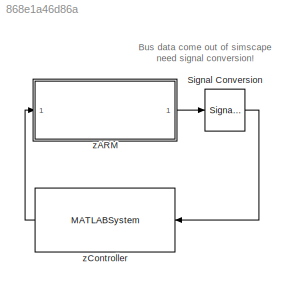
MODEL slx_868e1a46d86a
KIND model
CONFIG AbsTol = 1e-3
CONFIG EnableMultiTasking = off
CONFIG FixedStep = auto
CONFIG InitFcn = load('bus.mat')
CONFIG MaxStep = auto
CONFIG MinStep = auto
CONFIG RelTol = 1e-3
CONFIG SampleTimeConstraint = Unconstrained
CONFIG SolverName = VariableStepAuto
CONFIG StartTime = 0.0
CONFIG StopTime = 10.0
BLOCK [SignalConversion] Signal Conversion
  ConversionOutput = Nonvirtual bus
  OutDataTypeStr = Bus: state
  OverrideOpt = off
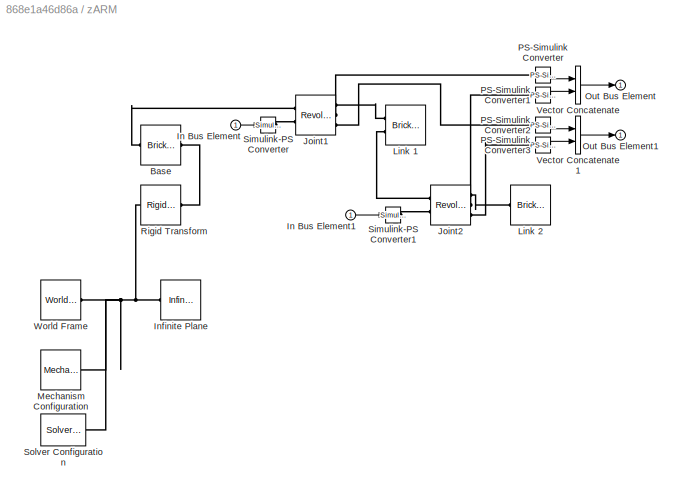
BLOCK [SubSystem] zARM
  Ports = [1, 1]
  RequestExecContextInheritance = off
BLOCK [Reference] zARM/Base  REF=sm_lib/Body Elements/Brick Solid
  Ports = [0, 0, 0, 0, 0, 1, 1]
  SourceBlock = sm_lib/Body Elements/Brick Solid
  SourceProductBaseCode = MS
  SourceType = Brick Solid
BLOCK [Inport] zARM/In Bus Element
BLOCK [Inport] zARM/In Bus Element1
BLOCK [Reference] zARM/Infinite Plane  REF=sm_lib/Curves and Surfaces/Infinite Plane
  Ports = [0, 0, 0, 0, 0, 1, 1]
  SourceBlock = sm_lib/Curves and Surfaces/Infinite Plane
  SourceProductBaseCode = MS
  SourceType = Infinite Plane
BLOCK [Reference] zARM/Joint1  REF=sm_lib/Joints/Revolute Joint
  Ports = [0, 0, 0, 0, 0, 2, 3]
  SourceBlock = sm_lib/Joints/Revolute Joint
  SourceProductBaseCode = MS
  SourceType = Revolute Joint
BLOCK [Reference] zARM/Joint2  REF=sm_lib/Joints/Revolute Joint
  Ports = [0, 0, 0, 0, 0, 2, 3]
  SourceBlock = sm_lib/Joints/Revolute Joint
  SourceProductBaseCode = MS
  SourceType = Revolute Joint
BLOCK [Reference] zARM/Link 1  REF=sm_lib/Body Elements/Brick Solid
  Ports = [0, 0, 0, 0, 0, 2, 1]
  SourceBlock = sm_lib/Body Elements/Brick Solid
  SourceProductBaseCode = MS
  SourceType = Brick Solid
BLOCK [Reference] zARM/Link 2  REF=sm_lib/Body Elements/Brick Solid
  Ports = [0, 0, 0, 0, 0, 1, 1]
  SourceBlock = sm_lib/Body Elements/Brick Solid
  SourceProductBaseCode = MS
  SourceType = Brick Solid
BLOCK [Reference] zARM/Mechanism Configuration  REF=sm_lib/Utilities/Mechanism
Configuration
  Ports = [0, 0, 0, 0, 0, 0, 1]
  SourceBlock = sm_lib/Utilities/Mechanism\nConfiguration
  SourceProductBaseCode = MS
  SourceType = Mechanism\nConfiguration
BLOCK [Outport] zARM/Out Bus Element
BLOCK [Outport] zARM/Out Bus Element1
BLOCK [Reference] zARM/PS-Simulink Converter  REF=nesl_utility/PS-Simulink
Converter
  Ports = [0, 1, 0, 0, 0, 1]
  SourceBlock = nesl_utility/PS-Simulink\nConverter
  SourceProductBaseCode = SS
  SourceType = PS-Simulink\nConverter
BLOCK [Reference] zARM/PS-Simulink Converter1  REF=nesl_utility/PS-Simulink
Converter
  Ports = [0, 1, 0, 0, 0, 1]
  SourceBlock = nesl_utility/PS-Simulink\nConverter
  SourceProductBaseCode = SS
  SourceType = PS-Simulink\nConverter
BLOCK [Reference] zARM/PS-Simulink Converter2  REF=nesl_utility/PS-Simulink
Converter
  Ports = [0, 1, 0, 0, 0, 1]
  SourceBlock = nesl_utility/PS-Simulink\nConverter
  SourceProductBaseCode = SS
  SourceType = PS-Simulink\nConverter
BLOCK [Reference] zARM/PS-Simulink Converter3  REF=nesl_utility/PS-Simulink
Converter
  Ports = [0, 1, 0, 0, 0, 1]
  SourceBlock = nesl_utility/PS-Simulink\nConverter
  SourceProductBaseCode = SS
  SourceType = PS-Simulink\nConverter
BLOCK [Reference] zARM/Rigid Transform  REF=sm_lib/Frames and
Transforms/Rigid
Transform
  Ports = [0, 0, 0, 0, 0, 1, 1]
  SourceBlock = sm_lib/Frames and\nTransforms/Rigid\nTransform
  SourceProductBaseCode = MS
  SourceType = Rigid\nTransform
BLOCK [Reference] zARM/Simulink-PS Converter  REF=nesl_utility/Simulink-PS
Converter
  Ports = [1, 0, 0, 0, 0, 0, 1]
  SourceBlock = nesl_utility/Simulink-PS\nConverter
  SourceProductBaseCode = SS
  SourceType = Simulink-PS\nConverter
BLOCK [Reference] zARM/Simulink-PS Converter1  REF=nesl_utility/Simulink-PS
Converter
  Ports = [1, 0, 0, 0, 0, 0, 1]
  SourceBlock = nesl_utility/Simulink-PS\nConverter
  SourceProductBaseCode = SS
  SourceType = Simulink-PS\nConverter
BLOCK [Reference] zARM/Solver Configuration  REF=nesl_utility/Solver
Configuration
  Ports = [0, 0, 0, 0, 0, 0, 1]
  SourceBlock = nesl_utility/Solver\nConfiguration
  SourceProductName = Utilities
  SourceType = Solver\nConfiguration
BLOCK [Concatenate] zARM/Vector Concatenate
  Ports = [2, 1]
BLOCK [Concatenate] zARM/Vector Concatenate1
  Ports = [2, 1]
BLOCK [Reference] zARM/World Frame  REF=sm_lib/Frames and
Transforms/World Frame
  Ports = [0, 0, 0, 0, 0, 0, 1]
  SourceBlock = sm_lib/Frames and\nTransforms/World Frame
  SourceProductBaseCode = MS
  SourceType = World Frame
BLOCK [MATLABSystem] zController
  MaskDisplay = disp('zController');\nport_label('input',1,'state');\nport_label('output',1,'control');
  MaskType = zController
  NameLocation = top
  Ports = [1, 1]
  SimulateUsing = Code generation
  System = zController
ANNOTATION (root): Bus data come out of simscape need signal conversion!
LINE Signal Conversion:1 -> zController:1
LINE zARM/In Bus Element1:1 -> zARM/Simulink-PS Converter1:1
LINE zARM/In Bus Element:1 -> zARM/Simulink-PS Converter:1
LINE zARM/PS-Simulink Converter1:1 -> zARM/Vector Concatenate:2
LINE zARM/PS-Simulink Converter2:1 -> zARM/Vector Concatenate1:1
LINE zARM/PS-Simulink Converter3:1 -> zARM/Vector Concatenate1:2
LINE zARM/PS-Simulink Converter:1 -> zARM/Vector Concatenate:1
LINE zARM/Vector Concatenate1:1 -> zARM/Out Bus Element1:1
LINE zARM/Vector Concatenate:1 -> zARM/Out Bus Element:1
LINE zARM:1 -> Signal Conversion:1
LINE zController:1 -> zARM:1
PLINE zARM/Base:LConn1 -- zARM/Joint1:LConn1
PLINE zARM/Base:RConn1 -- zARM/Rigid Transform:RConn1
PNET net1: zARM/Infinite Plane:LConn1 -- zARM/Mechanism Configuration:RConn1 -- zARM/Rigid Transform:LConn1 -- zARM/Solver Configuration:RConn1 -- zARM/World Frame:RConn1
PLINE zARM/Joint1:LConn2 -- zARM/Simulink-PS Converter:RConn1
PLINE zARM/Joint1:RConn1 -- zARM/Link 1:LConn1
PLINE zARM/Joint1:RConn2 -- zARM/PS-Simulink Converter:LConn1
PLINE zARM/Joint1:RConn3 -- zARM/PS-Simulink Converter2:LConn1
PLINE zARM/Joint2:LConn1 -- zARM/Link 1:LConn2
PLINE zARM/Joint2:LConn2 -- zARM/Simulink-PS Converter1:RConn1
PLINE zARM/Joint2:RConn1 -- zARM/Link 2:LConn1
PLINE zARM/Joint2:RConn2 -- zARM/PS-Simulink Converter1:LConn1
PLINE zARM/Joint2:RConn3 -- zARM/PS-Simulink Converter3:LConn1
note: PNET lines group multi-terminal physical nets as a canonical sorted terminal list (undirected conserving connections); 2-terminal nets keep the pairwise PLINE form
